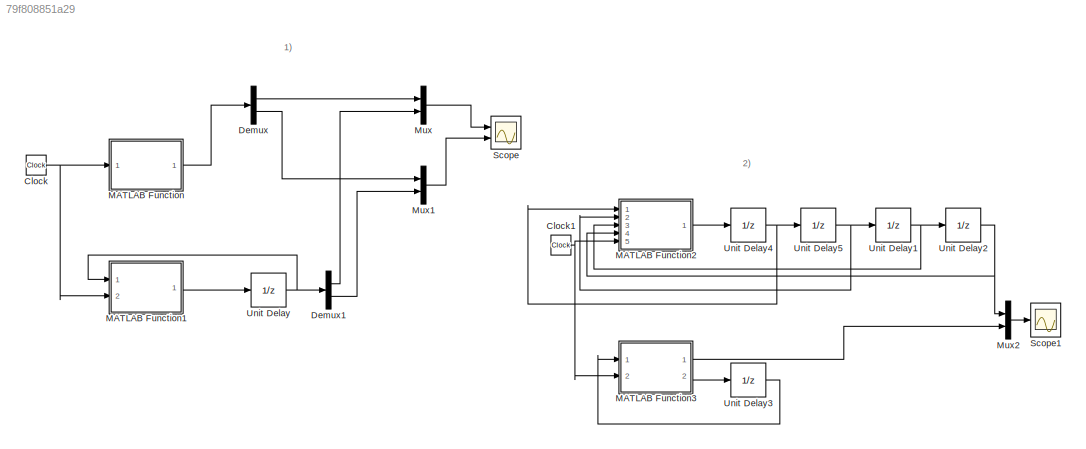
MODEL slx_79f808851a29
KIND model
CONFIG AbsTol = auto
CONFIG FixedStep = 1
CONFIG MaxStep = auto
CONFIG MinStep = auto
CONFIG RelTol = 1e-3
CONFIG SampleTimeConstraint = Unconstrained
CONFIG Solver = ode3
CONFIG SolverMode = Auto
CONFIG SolverName = ode3
CONFIG StartTime = 0.0
CONFIG StopTime = 10.0
BLOCK [Clock] Clock
BLOCK [Clock] Clock1
BLOCK [Demux] Demux
  DisplayOption = bar
  Outputs = 2
  Ports = [1, 2]
BLOCK [Demux] Demux1
  DisplayOption = bar
  Outputs = 2
  Ports = [1, 2]
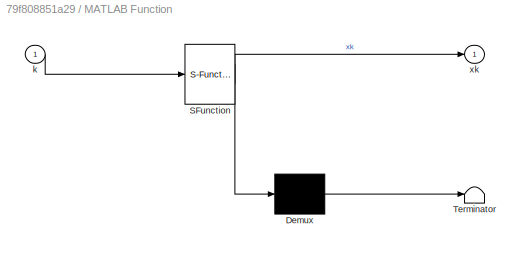
BLOCK [SubSystem] MATLAB Function
  ErrorFcn = Stateflow.Translate.translate
  PermitHierarchicalResolution = ExplicitOnly
  Ports = [1, 1]
  RequestExecContextInheritance = off
  SFBlockType = MATLAB Function
  TreatAsAtomicUnit = on
BLOCK [Demux] MATLAB Function/ Demux 
  Outputs = 1
  Ports = [1, 1]
BLOCK [S-Function] MATLAB Function/ SFunction 
  EnableBusSupport = on
  FunctionName = sf_sfun
  PortCounts = [1 2]
  Ports = [1, 2]
  Tag = Stateflow S-Function practicad1 2
BLOCK [Terminator] MATLAB Function/ Terminator 
BLOCK [Inport] MATLAB Function/k
  IconDisplay = Port number
BLOCK [Outport] MATLAB Function/xk
  IconDisplay = Port number
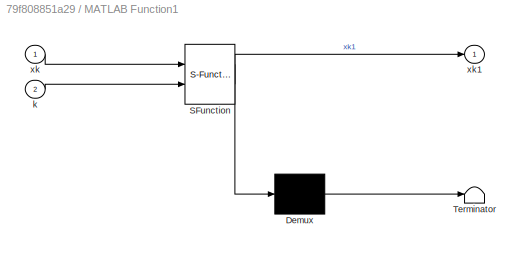
BLOCK [SubSystem] MATLAB Function1
  ErrorFcn = Stateflow.Translate.translate
  PermitHierarchicalResolution = ExplicitOnly
  Ports = [2, 1]
  RequestExecContextInheritance = off
  SFBlockType = MATLAB Function
  TreatAsAtomicUnit = on
BLOCK [Demux] MATLAB Function1/ Demux 
  Outputs = 1
  Ports = [1, 1]
BLOCK [S-Function] MATLAB Function1/ SFunction 
  EnableBusSupport = on
  FunctionName = sf_sfun
  PortCounts = [2 2]
  Ports = [2, 2]
  Tag = Stateflow S-Function practicad1 1
BLOCK [Terminator] MATLAB Function1/ Terminator 
BLOCK [Inport] MATLAB Function1/k
  IconDisplay = Port number
  Port = 2
BLOCK [Inport] MATLAB Function1/xk
  IconDisplay = Port number
BLOCK [Outport] MATLAB Function1/xk1
  IconDisplay = Port number
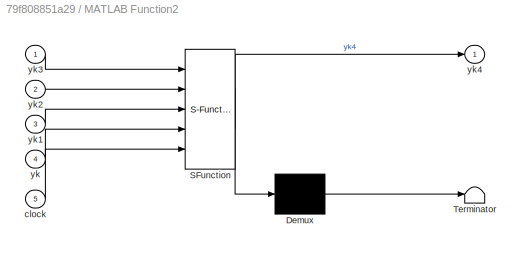
BLOCK [SubSystem] MATLAB Function2
  ErrorFcn = Stateflow.Translate.translate
  PermitHierarchicalResolution = ExplicitOnly
  Ports = [5, 1]
  RequestExecContextInheritance = off
  SFBlockType = MATLAB Function
  TreatAsAtomicUnit = on
BLOCK [Demux] MATLAB Function2/ Demux 
  Outputs = 1
  Ports = [1, 1]
BLOCK [S-Function] MATLAB Function2/ SFunction 
  EnableBusSupport = on
  FunctionName = sf_sfun
  PortCounts = [5 2]
  Ports = [5, 2]
  Tag = Stateflow S-Function practicad1 3
BLOCK [Terminator] MATLAB Function2/ Terminator 
BLOCK [Inport] MATLAB Function2/clock
  IconDisplay = Port number
  Port = 5
BLOCK [Inport] MATLAB Function2/yk
  IconDisplay = Port number
  Port = 4
BLOCK [Inport] MATLAB Function2/yk1
  IconDisplay = Port number
  Port = 3
BLOCK [Inport] MATLAB Function2/yk2
  IconDisplay = Port number
  Port = 2
BLOCK [Inport] MATLAB Function2/yk3
  IconDisplay = Port number
BLOCK [Outport] MATLAB Function2/yk4
  IconDisplay = Port number
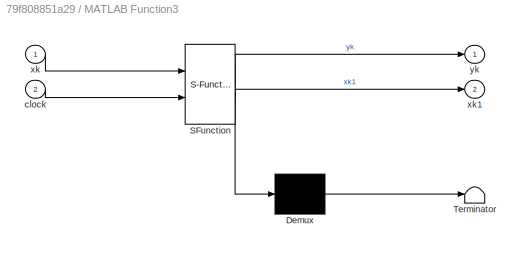
BLOCK [SubSystem] MATLAB Function3
  ErrorFcn = Stateflow.Translate.translate
  PermitHierarchicalResolution = ExplicitOnly
  Ports = [2, 2]
  RequestExecContextInheritance = off
  SFBlockType = MATLAB Function
  TreatAsAtomicUnit = on
BLOCK [Demux] MATLAB Function3/ Demux 
  Outputs = 1
  Ports = [1, 1]
BLOCK [S-Function] MATLAB Function3/ SFunction 
  EnableBusSupport = on
  FunctionName = sf_sfun
  PortCounts = [2 3]
  Ports = [2, 3]
  Tag = Stateflow S-Function practicad1 4
BLOCK [Terminator] MATLAB Function3/ Terminator 
BLOCK [Inport] MATLAB Function3/clock
  IconDisplay = Port number
  Port = 2
BLOCK [Inport] MATLAB Function3/xk
  IconDisplay = Port number
BLOCK [Outport] MATLAB Function3/xk1
  IconDisplay = Port number
  Port = 2
BLOCK [Outport] MATLAB Function3/yk
  IconDisplay = Port number
BLOCK [Mux] Mux
  DisplayOption = bar
  Inputs = 2
  Ports = [2, 1]
BLOCK [Mux] Mux1
  DisplayOption = bar
  Inputs = 2
  Ports = [2, 1]
BLOCK [Mux] Mux2
  DisplayOption = bar
  Inputs = 2
  Ports = [2, 1]
BLOCK [Scope] Scope
  Floating = off
  LimitDataPoints = off
  NumInputPorts = 2
  Ports = [2]
  YMax = 5~5
  YMin = -5~-5
BLOCK [Scope] Scope1
  Floating = off
  LimitDataPoints = off
  NumInputPorts = 1
  Ports = [1]
  SaveName = ScopeData1
BLOCK [UnitDelay] Unit Delay
  InitialCondition = [-1;4]
  InputProcessing = Elements as channels (sample based)
  SampleTime = -1
BLOCK [UnitDelay] Unit Delay1
  InitialCondition = 298
  InputProcessing = Elements as channels (sample based)
  SampleTime = -1
BLOCK [UnitDelay] Unit Delay2
  InitialCondition = -5
  InputProcessing = Elements as channels (sample based)
  SampleTime = -1
BLOCK [UnitDelay] Unit Delay3
  InitialCondition = [1;2;-1;-3;]
  InputProcessing = Elements as channels (sample based)
  SampleTime = -1
BLOCK [UnitDelay] Unit Delay4
  InitialCondition = 49231
  InputProcessing = Elements as channels (sample based)
  SampleTime = -1
BLOCK [UnitDelay] Unit Delay5
  InitialCondition = 4992.8
  InputProcessing = Elements as channels (sample based)
  SampleTime = -1
ANNOTATION (root): 1)
ANNOTATION (root): 2)
NET Clock1:1 -> MATLAB Function2:5, MATLAB Function3:2
NET Clock:1 -> MATLAB Function1:2, MATLAB Function:1
LINE Demux1:1 -> Mux:2
LINE Demux1:2 -> Mux1:2
LINE Demux:1 -> Mux:1
LINE Demux:2 -> Mux1:1
LINE MATLAB Function1:1 -> Unit Delay:1
LINE MATLAB Function2:1 -> Unit Delay4:1
LINE MATLAB Function3:1 -> Mux2:2
LINE MATLAB Function3:2 -> Unit Delay3:1
LINE MATLAB Function:1 -> Demux:1
LINE Mux1:1 -> Scope:2
LINE Mux2:1 -> Scope1:1
LINE Mux:1 -> Scope:1
NET Unit Delay1:1 -> MATLAB Function2:3, Unit Delay2:1
NET Unit Delay2:1 -> MATLAB Function2:4, Mux2:1
LINE Unit Delay3:1 -> MATLAB Function3:1
NET Unit Delay4:1 -> MATLAB Function2:1, Unit Delay5:1
NET Unit Delay5:1 -> MATLAB Function2:2, Unit Delay1:1
NET Unit Delay:1 -> Demux1:1, MATLAB Function1:1
note: NET lines group one-source signal fan-out (src -> all destinations, sorted); 1:1 wires keep LINE
CHART MATLAB Function1 states=1 transitions=1
  STATE_LABEL 'eML_blk_kernel()'
  STATE_LABEL 'SCRIPT:\nfunction xk1  = fcn(xk,k)\n%#codegen\nA=[0 1;-1/10 7/10];\nB=[3/10;-1/10];\nu=-5*cos(k);\nxk1=A*xk+B*u;\n'
CHART MATLAB Function states=1 transitions=1
  STATE_LABEL 'eML_blk_kernel()'
  STATE_LABEL 'SCRIPT:\nfunction xk  = fcn(k)\n%#codegen\n xk=[(207*sin(k - 1) + 723*sin(k + 1) + 1551*sin(k - 2) - 90*sin(k + 2) - 930*sin(k - 3) - 1461*sin(k) + 25504*(1/2)^k*sin(1) - 14920*(1/2)^k*sin(2) + 2000*(1/2)^k*sin(3) - 27700*(1/5)^k*sin(1) + 17485*(1/5)^k*sin(2) - 3050*(1/5)^k*sin(3))/(1680*sin(1) - 924*sin(2) + 120*sin(3));\n        (291*sin(k - 1) - 201*sin(k + 1) - 237*sin(k - 2) + 30*sin(k + 2) - 90*...<+198ch>'
CHART MATLAB Function2 states=1 transitions=1
  STATE_LABEL 'eML_blk_kernel()'
  STATE_LABEL 'SCRIPT:\nfunction yk4 = fcn(yk3,yk2,yk1,yk,clock)\n%#codegen\nk=clock;\nuk3=sin(k+3);\nuk2=sin(k+2);\nyk4=16*yk3-96*yk2+256*yk1-256*yk+uk3+2*uk2;'
CHART MATLAB Function3 states=1 transitions=1
  STATE_LABEL 'eML_blk_kernel()'
  STATE_LABEL "SCRIPT:\nfunction [yk,xk1] = fcn(xk,clock)\n%#codegen\nuk=clock;\nA=[0 1 0 0;0 0 1 0;0 0 0 1;-256 256 -96 16];\nB=[0 0 0 1]';\nC=[0 0 2 1];\nxk1= A*xk + B*uk;\nyk=C*xk;"
